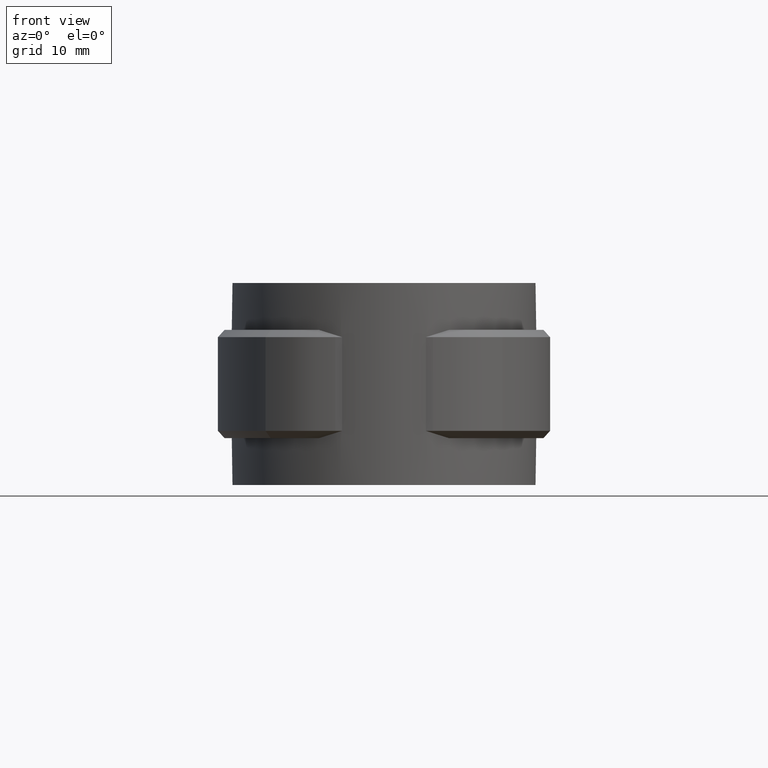
[diagram: clean part render]
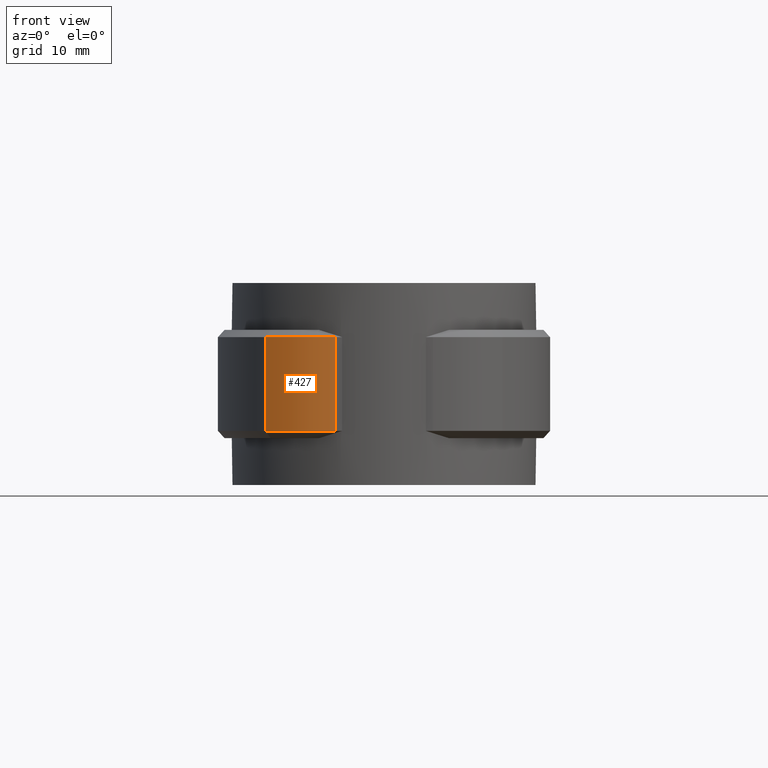
[diagram: same view with one face highlighted and labeled with its STEP entity id]
A machine part, front view. The second image highlights one B-rep face of the part: STEP entity #427.
In plain terms, the highlighted cylindrical surface (partial cylindrical patch) has radius 13.6 mm, axis along (0, 0, -1).
Its self-contained STEP definition (entity closure, byte-faithful):
#427 = ADVANCED_FACE( '', ( #745 ), #746, .T. );
#745 = FACE_OUTER_BOUND( '', #1543, .T. );
#746 = CYLINDRICAL_SURFACE( '', #1544, 13.6000000000000 );
#1543 = EDGE_LOOP( '', ( #3392, #3393, #3394, #3395 ) );
#1544 = AXIS2_PLACEMENT_3D( '', #3396, #3397, #3398 );
#3392 = ORIENTED_EDGE( '', *, *, #4332, .F. );
#3393 = ORIENTED_EDGE( '', *, *, #4299, .T. );
#3394 = ORIENTED_EDGE( '', *, *, #4286, .T. );
#3395 = ORIENTED_EDGE( '', *, *, #4328, .T. );
#3396 = CARTESIAN_POINT( '', ( -6.74778667416212, -6.68000000000001, -20.0000000000000 ) );
#3397 = DIRECTION( '', ( 0.000000000000000, 0.000000000000000, -1.00000000000000 ) );
#3398 = DIRECTION( '', ( 0.275275955036381, 0.961365252429486, 0.000000000000000 ) );
#4286 = EDGE_CURVE( '', #5013, #5014, #5015, .T. );
#4299 = EDGE_CURVE( '', #5034, #5013, #5035, .F. );
#4328 = EDGE_CURVE( '', #5014, #5072, #5074, .T. );
#4332 = EDGE_CURVE( '', #5034, #5072, #5078, .T. );
#5013 = VERTEX_POINT( '', #7496 );
#5014 = VERTEX_POINT( '', #7497 );
#5015 = LINE( '', #7498, #7499 );
#5034 = VERTEX_POINT( '', #7534 );
#5035 = CIRCLE( '', #7535, 13.6000000000000 );
#5072 = VERTEX_POINT( '', #7587 );
#5074 = CIRCLE( '', #7590, 13.6000000000000 );
#5078 = LINE( '', #7594, #7595 );
#7496 = CARTESIAN_POINT( '', ( -6.74778667416212, -20.2800000000000, -19.0000000000000 ) );
#7497 = CARTESIAN_POINT( '', ( -6.74778667416212, -20.2800000000000, -6.00000000000000 ) );
#7498 = CARTESIAN_POINT( '', ( -6.74778667416212, -20.2800000000000, -20.0000000000000 ) );
#7499 = VECTOR( '', #8396, 1000.00000000000 );
#7534 = CARTESIAN_POINT( '', ( -16.4128629004502, -16.2479831490258, -19.0000000000000 ) );
#7535 = AXIS2_PLACEMENT_3D( '', #8407, #8408, #8409 );
#7587 = CARTESIAN_POINT( '', ( -16.4128629004502, -16.2479831490258, -6.00000000000000 ) );
#7590 = AXIS2_PLACEMENT_3D( '', #8462, #8463, #8464 );
#7594 = CARTESIAN_POINT( '', ( -16.4128629004502, -16.2479831490258, -20.0000000000000 ) );
#7595 = VECTOR( '', #8474, 1000.00000000000 );
#8396 = DIRECTION( '', ( 0.000000000000000, 0.000000000000000, 1.00000000000000 ) );
#8407 = CARTESIAN_POINT( '', ( -6.74778667416212, -6.68000000000001, -19.0000000000000 ) );
#8408 = DIRECTION( '', ( 0.000000000000000, 0.000000000000000, -1.00000000000000 ) );
#8409 = DIRECTION( '', ( -1.00000000000000, 0.000000000000000, 0.000000000000000 ) );
#8462 = CARTESIAN_POINT( '', ( -6.74778667416212, -6.68000000000001, -6.00000000000000 ) );
#8463 = DIRECTION( '', ( 0.000000000000000, 0.000000000000000, -1.00000000000000 ) );
#8464 = DIRECTION( '', ( -1.00000000000000, 0.000000000000000, 0.000000000000000 ) );
#8474 = DIRECTION( '', ( 0.000000000000000, 0.000000000000000, 1.00000000000000 ) );